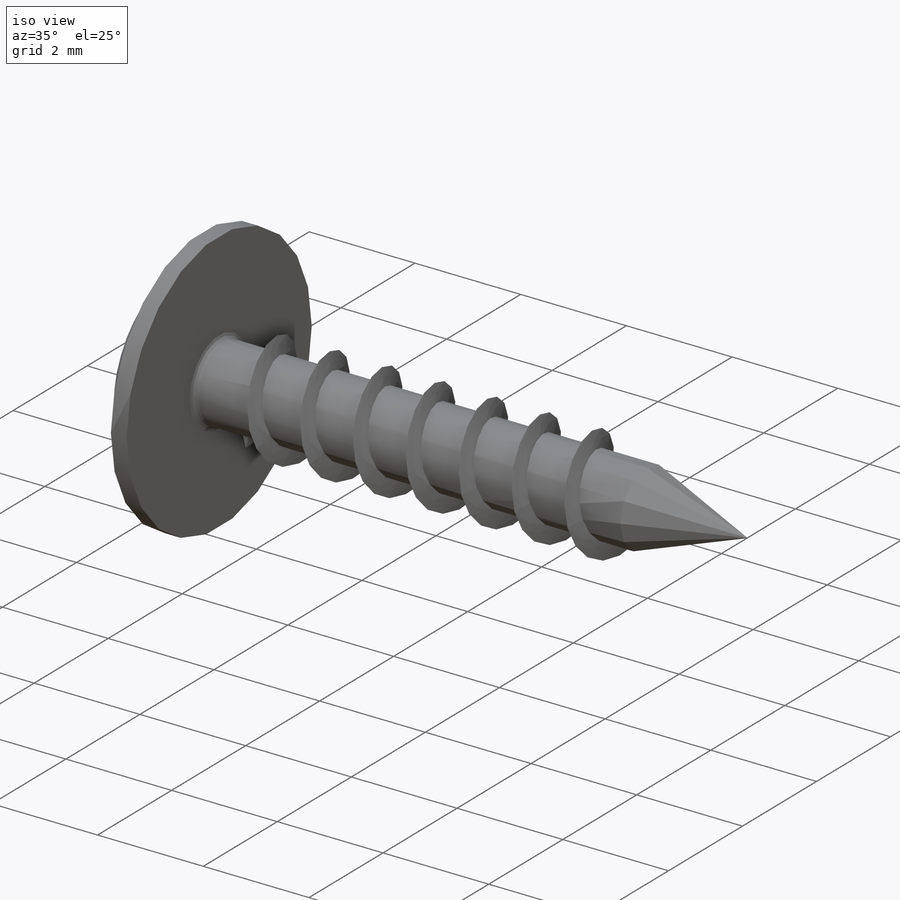
[diagram: iso view]
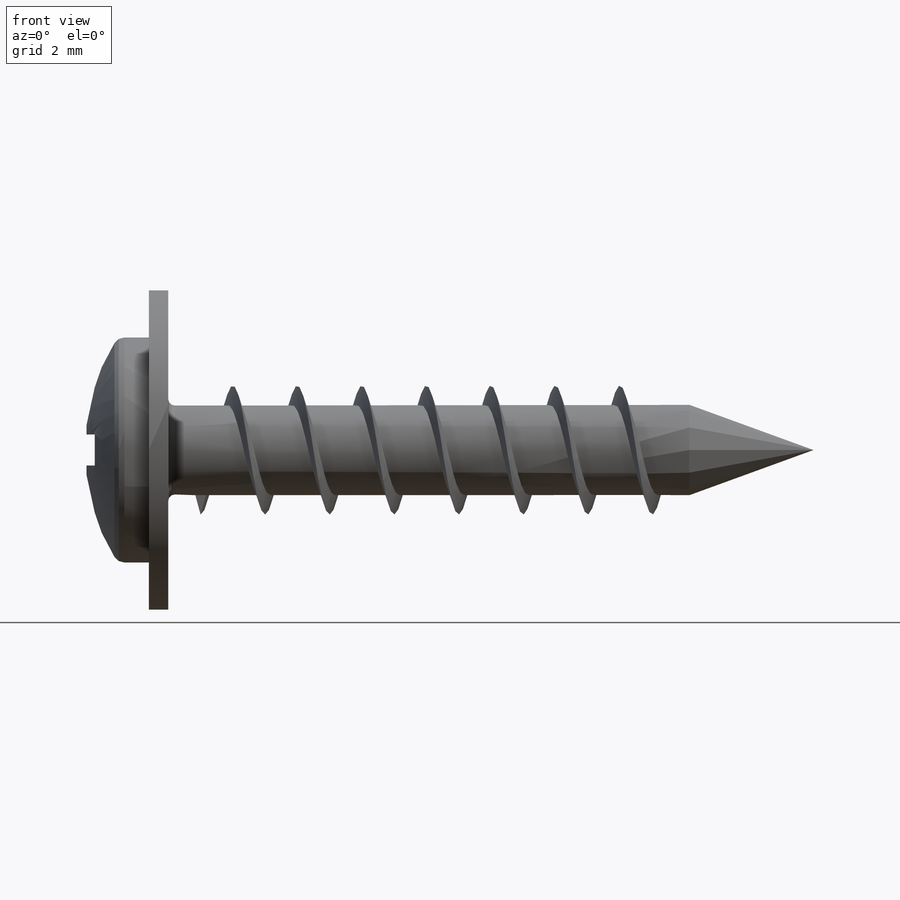
[diagram: front view]
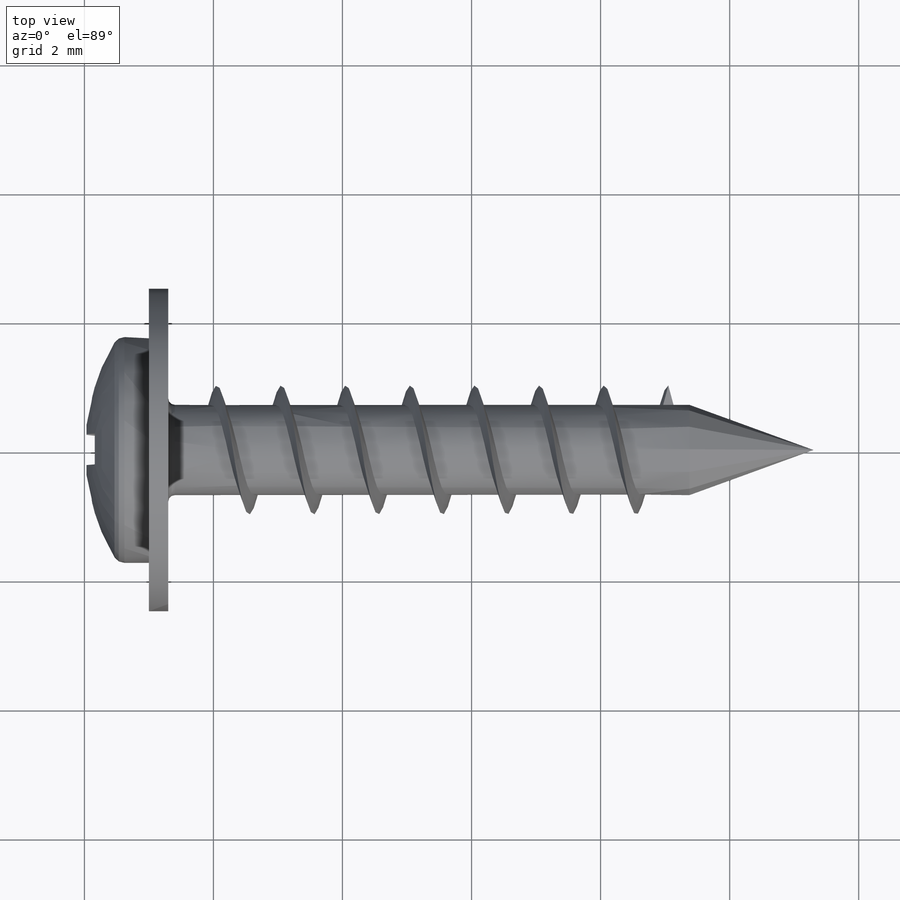
[diagram: top view]
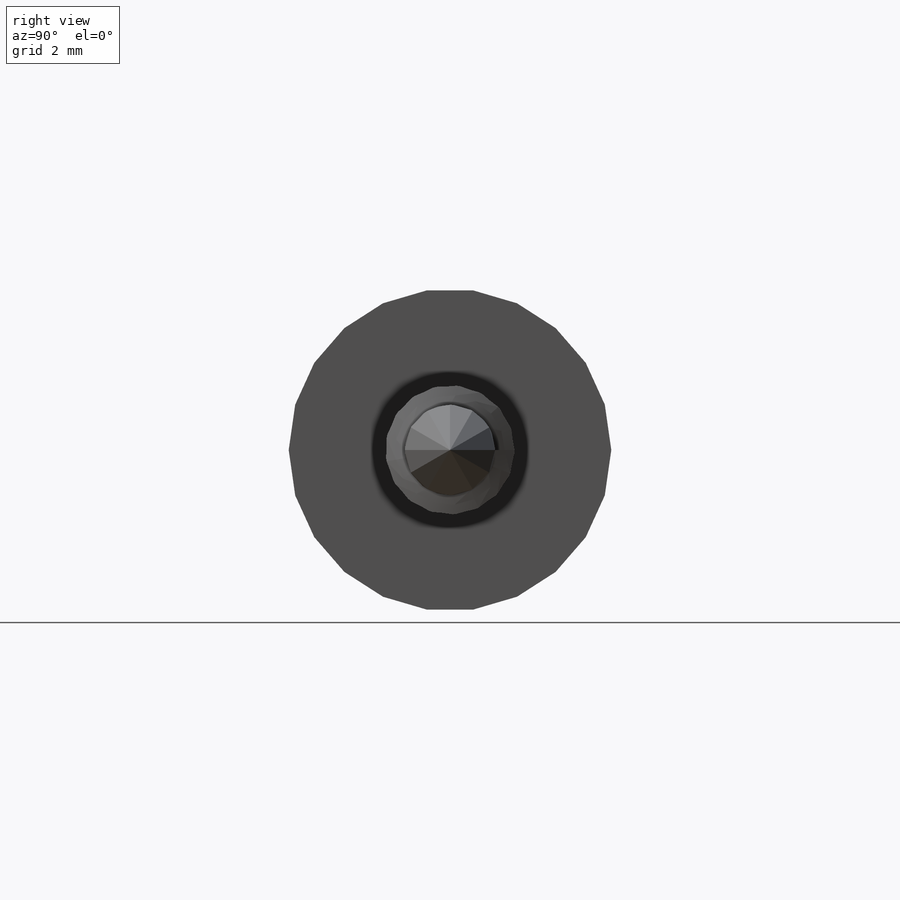
[diagram: right view]
SOLIDWORKS PART (.sldprt)
format: sldprt  version: not decoded by parser v0  size: 402,432 bytes
history: native  units: mm
features: sketch x6, plane x5, revolve x4, material x1, fillet x1, pattern_circular x1, cut_revolve x1, helix x1, sweep x1 (+10 scaffold rows collapsed)
feature tree (31):
  scaffold x10  (default folders/planes/origin — collapsed)
  material  "Acier allié"
  plane  "Plane1"
  plane  "Plane2"
  plane  "Plane3"
  sketch  "BodySke"  dims[c1.Head_fillet_rad=3.6322mm c1.Head_crown_rad=3.2mm c2.Head_fillet_rad=0.18mm c2.D1=~7.099516mm c2.Head_ang=85.0deg c2.Oval_ht=2.3876mm c2.Head_ht=6.1976mm c2.Diameter=10.0mm c2.Length=76.2mm c2.Head_dia=20.0152mm c3.Head_dia=15.3924mm c3.Head_ht=8.509mm c3.Length=10.0mm c3.Head_side_ht=6.1722mm c4.Head_ht=5.1562mm c4.Head_dia=18.4912mm c5.Head_ht=1.6mm c5.Head_dia=3.5mm c5.Advance=0.4mm c5.Thread_nom=10.0mm c5.Thread_lim=~37.30625mm c5.Diameter=1.4mm c5.D1=5.0mm c5.D2=0.3mm c5.D3=1.3mm c5.D4=1.4mm c5.D5=~1.879357mm c6.D5=20.0deg c6.D6=10.0mm c6.D7=0.5mm]
  revolve  "Base-Revolve"  Angle=360deg Head_dia=3.5mm
  fillet  "Fillet1"  Radius=0.1mm
  sketch  "Sketch3"  dims[Cross_dia=2.1mm D1=1.05mm Cross_width=0.48mm D2=0.24mm]
  plane  "Plane4"  Offset=1.42mm Cross_depth=1.42mm
  sketch  "Sketch4"  dims[D1=0.48mm D2=~0.684028mm D3=0.24mm D4=~0.342014mm]
  pattern_circular  "RecPat"  Count=2 Angle=90deg
  sketch  "RecCorSke"  dims[c1.Diameter=0.711mm c1.Depth=1.42mm c1.D1=~7.118754mm c1.Draft_angle=4.0deg c2.D1=3.175mm c2.Bottom_angle=18.0deg]
  cut_revolve  "RecessCore"  Angle=360deg
  revolve  "ConfigurationName"  CopiedFlag=1  [1 undecoded]
  revolve  "PartNumberID"  [1 undecoded]
  revolve  "ConfigurationName"  [1 undecoded]
  plane  "Plan1"
  sketch  "Esquisse1"  dims[D1=2.0mm]
  helix  "Hélice/Spirale1"  Pitch=7.25mm
  sketch  "Esquisse2"  dims[c1.D1=0.3mm c2.D1=30.0deg]
  sweep  "Balayage1"
decode coverage: 12 of 15 modeling features carry decoded parameters
note: ~ marks probable driven/reference dimensions
note: 3 parameter values undecoded
summary: no parameter record found for 3 features
note: suppression state not decoded; provenance and decode notes live in map.json
